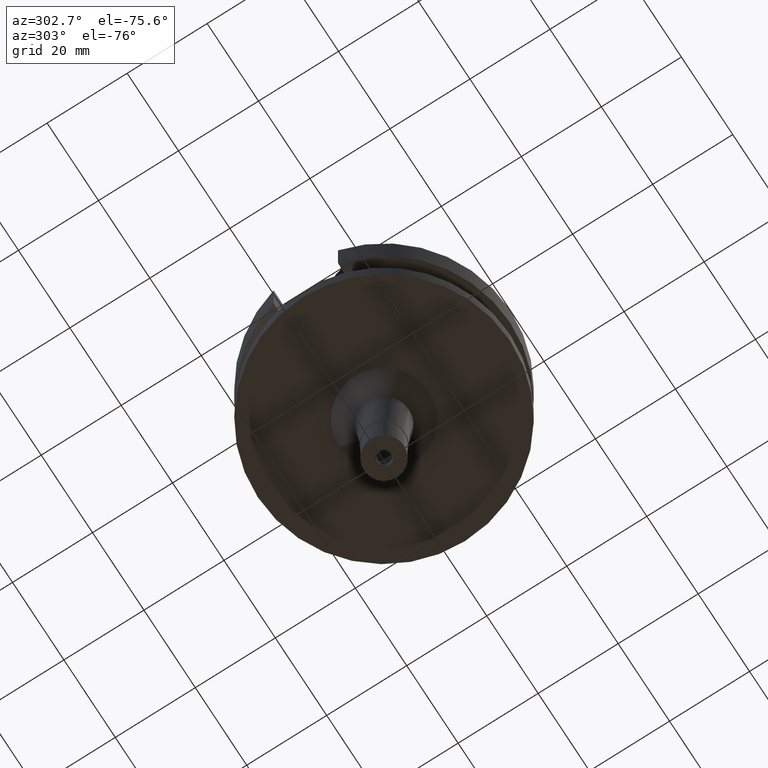
[diagram: clean part render]
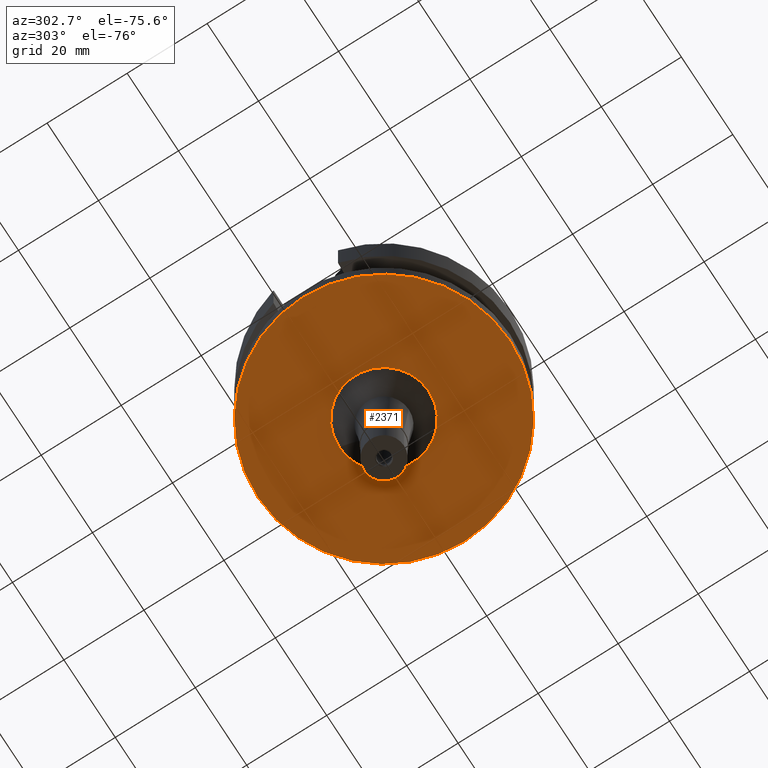
[diagram: same view with one face highlighted and labeled with its STEP entity id]
A machine part, auxiliary view. The second image highlights one B-rep face of the part: STEP entity #2371.
In plain terms, the highlighted planar face has unit normal (0, 0, -1).
Its self-contained STEP definition (entity closure, byte-faithful):
#91 = DIRECTION ( 'NONE',  ( 0.0000000000000000000, 0.0000000000000000000, -1.000000000000000000 ) ) ;
#105 = FACE_OUTER_BOUND ( 'NONE', #199, .T. ) ;
#134 = ORIENTED_EDGE ( 'NONE', *, *, #1583, .F. ) ;
#199 = EDGE_LOOP ( 'NONE', ( #203, #820 ) ) ;
#203 = ORIENTED_EDGE ( 'NONE', *, *, #1250, .F. ) ;
#302 = DIRECTION ( 'NONE',  ( 0.0000000000000000000, -1.000000000000000000, 0.0000000000000000000 ) ) ;
#313 = PLANE ( 'NONE',  #2962 ) ;
#380 = DIRECTION ( 'NONE',  ( 0.0000000000000000000, 1.000000000000000000, 0.0000000000000000000 ) ) ;
#433 = DIRECTION ( 'NONE',  ( 0.0000000000000000000, 0.0000000000000000000, -1.000000000000000000 ) ) ;
#475 = CARTESIAN_POINT ( 'NONE',  ( 0.0000000000000000000, -11.22484128936000047, -27.00000000000000000 ) ) ;
#489 = VERTEX_POINT ( 'NONE', #2620 ) ;
#684 = VERTEX_POINT ( 'NONE', #1222 ) ;
#762 = CARTESIAN_POINT ( 'NONE',  ( 0.0000000000000000000, 0.0000000000000000000, -27.00000000000000000 ) ) ;
#795 = AXIS2_PLACEMENT_3D ( 'NONE', #2369, #1941, #302 ) ;
#820 = ORIENTED_EDGE ( 'NONE', *, *, #2181, .F. ) ;
#1004 = FACE_BOUND ( 'NONE', #2368, .T. ) ;
#1069 = ORIENTED_EDGE ( 'NONE', *, *, #1808, .F. ) ;
#1111 = DIRECTION ( 'NONE',  ( 0.0000000000000000000, 1.000000000000000000, 0.0000000000000000000 ) ) ;
#1222 = CARTESIAN_POINT ( 'NONE',  ( 0.0000000000000000000, 31.50000000000000000, -27.00000000000000000 ) ) ;
#1250 = EDGE_CURVE ( 'NONE', #684, #489, #2523, .T. ) ;
#1420 = DIRECTION ( 'NONE',  ( 0.0000000000000000000, 0.0000000000000000000, -1.000000000000000000 ) ) ;
#1583 = EDGE_CURVE ( 'NONE', #2461, #2859, #2766, .T. ) ;
#1641 = DIRECTION ( 'NONE',  ( 0.0000000000000000000, -1.000000000000000000, 0.0000000000000000000 ) ) ;
#1691 = CIRCLE ( 'NONE', #795, 31.50000000000000000 ) ;
#1808 = EDGE_CURVE ( 'NONE', #2859, #2461, #2810, .T. ) ;
#1876 = AXIS2_PLACEMENT_3D ( 'NONE', #762, #1420, #1641 ) ;
#1941 = DIRECTION ( 'NONE',  ( 0.0000000000000000000, 0.0000000000000000000, 1.000000000000000000 ) ) ;
#1989 = AXIS2_PLACEMENT_3D ( 'NONE', #2227, #2262, #380 ) ;
#2026 = CARTESIAN_POINT ( 'NONE',  ( 0.0000000000000000000, 11.22484128936000047, -27.00000000000000000 ) ) ;
#2181 = EDGE_CURVE ( 'NONE', #489, #684, #1691, .T. ) ;
#2221 = CARTESIAN_POINT ( 'NONE',  ( 0.0000000000000000000, 0.0000000000000000000, -27.00000000000000000 ) ) ;
#2227 = CARTESIAN_POINT ( 'NONE',  ( 0.0000000000000000000, 2.100085563517999935E-14, -27.00000000000000000 ) ) ;
#2262 = DIRECTION ( 'NONE',  ( 0.0000000000000000000, 0.0000000000000000000, 1.000000000000000000 ) ) ;
#2284 = AXIS2_PLACEMENT_3D ( 'NONE', #2498, #433, #1111 ) ;
#2368 = EDGE_LOOP ( 'NONE', ( #1069, #134 ) ) ;
#2369 = CARTESIAN_POINT ( 'NONE',  ( 0.0000000000000000000, 2.100085563517999935E-14, -27.00000000000000000 ) ) ;
#2371 = ADVANCED_FACE ( 'NONE', ( #105, #1004 ), #313, .T. ) ;
#2410 = DIRECTION ( 'NONE',  ( 0.0000000000000000000, -1.000000000000000000, 0.0000000000000000000 ) ) ;
#2461 = VERTEX_POINT ( 'NONE', #475 ) ;
#2498 = CARTESIAN_POINT ( 'NONE',  ( 0.0000000000000000000, 0.0000000000000000000, -27.00000000000000000 ) ) ;
#2523 = CIRCLE ( 'NONE', #1989, 31.50000000000000000 ) ;
#2620 = CARTESIAN_POINT ( 'NONE',  ( 0.0000000000000000000, -31.50000000000000000, -27.00000000000000000 ) ) ;
#2766 = CIRCLE ( 'NONE', #1876, 11.22484128936000047 ) ;
#2810 = CIRCLE ( 'NONE', #2284, 11.22484128936000047 ) ;
#2859 = VERTEX_POINT ( 'NONE', #2026 ) ;
#2962 = AXIS2_PLACEMENT_3D ( 'NONE', #2221, #91, #2410 ) ;